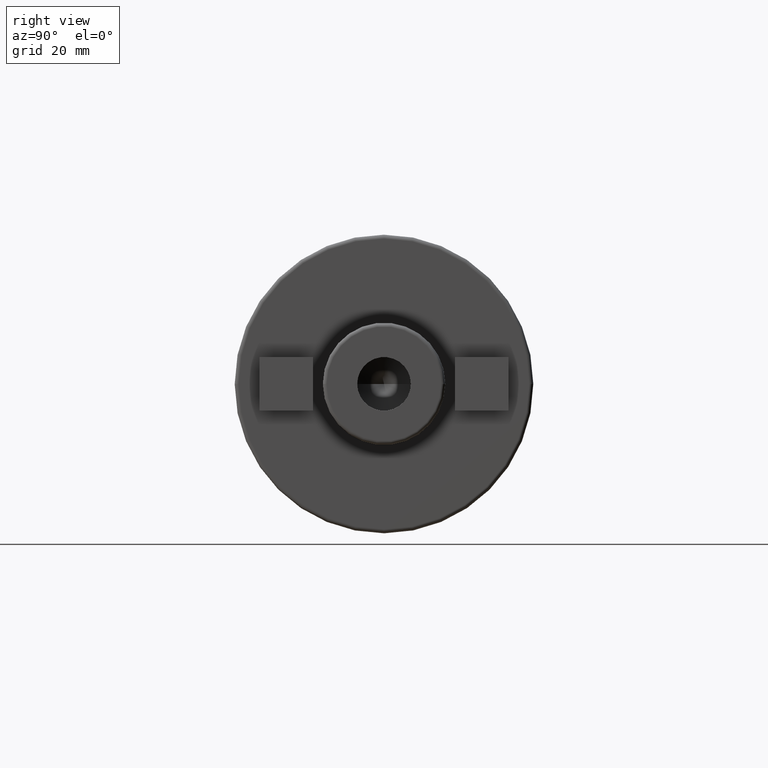
[diagram: clean part render]
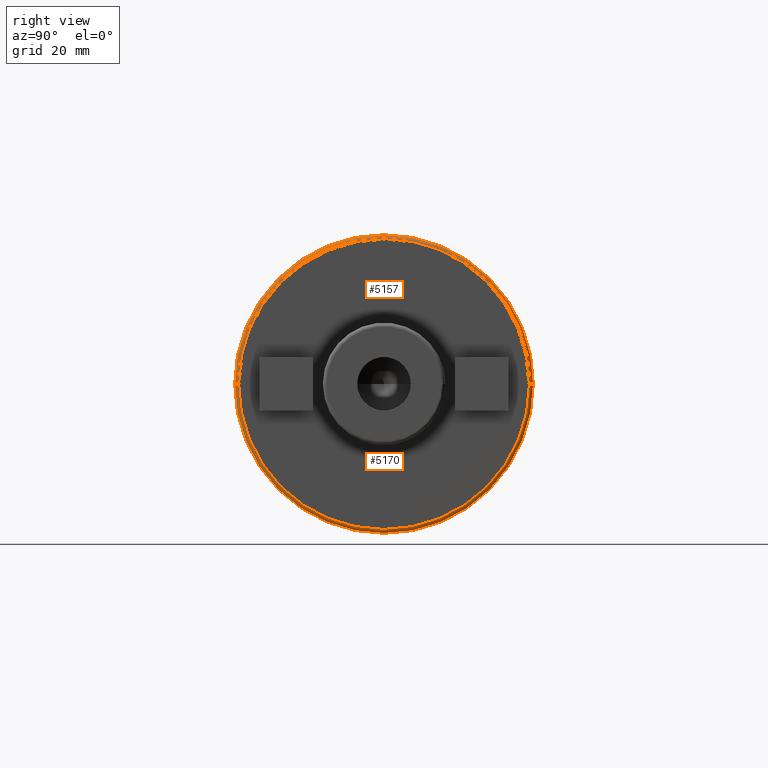
[diagram: same view with one multi-face feature highlighted, each face labeled with its STEP entity id]
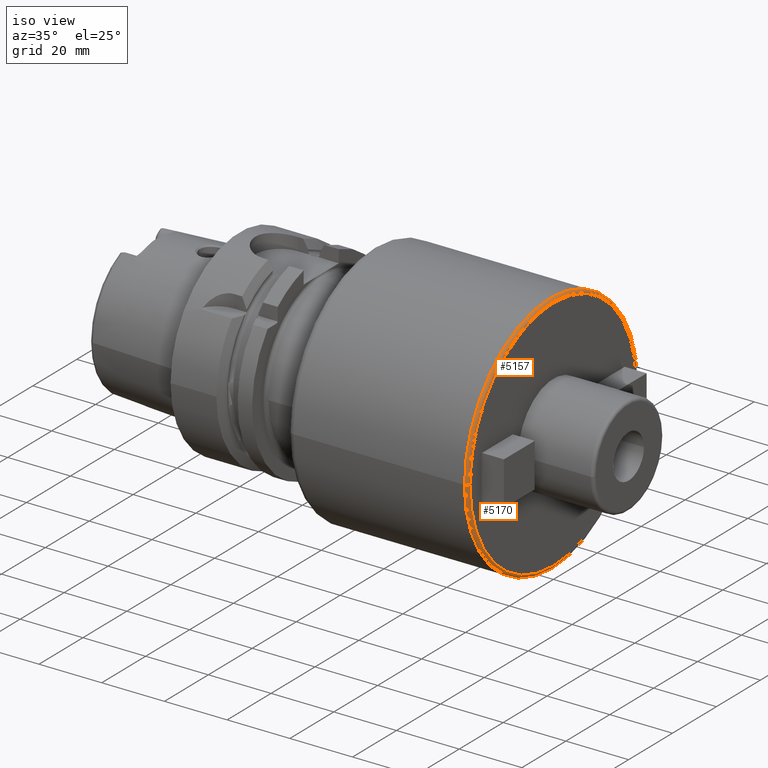
[diagram: same view with one multi-face feature highlighted, each face labeled with its STEP entity id]
A machine part, right view. The highlighted faces form ONE feature: a constant-radius fillet chain: 2 tangent blend faces with common blend radius 1 mm. The faces share edges in the B-rep.
A second angle (iso view) of the same feature is appended — it is thin or edge-on in the first view.
Their STEP definitions:
[1] entity #5170 (Torus):
#1535=CARTESIAN_POINT('',(9.9E1,0.E0,0.E0));
#1536=DIRECTION('',(-1.E0,0.E0,0.E0));
#1537=DIRECTION('',(0.E0,1.E0,0.E0));
#1538=AXIS2_PLACEMENT_3D('',#1535,#1536,#1537);
#1559=CARTESIAN_POINT('',(9.9E1,-3.8E1,-1.308314567794E-12));
#1560=DIRECTION('',(0.E0,-3.442927366815E-14,1.E0));
#1561=DIRECTION('',(0.E0,-1.E0,-3.442927366815E-14));
#1562=AXIS2_PLACEMENT_3D('',#1559,#1560,#1561);
#1564=CARTESIAN_POINT('',(9.9E1,3.8E1,1.320929476911E-12));
#1565=DIRECTION('',(0.E0,3.476125637336E-14,-1.E0));
#1566=DIRECTION('',(0.E0,1.E0,3.476125637336E-14));
#1567=AXIS2_PLACEMENT_3D('',#1564,#1565,#1566);
#1579=CARTESIAN_POINT('',(1.E2,0.E0,0.E0));
#1580=DIRECTION('',(-1.E0,0.E0,0.E0));
#1581=DIRECTION('',(0.E0,1.E0,0.E0));
#1582=AXIS2_PLACEMENT_3D('',#1579,#1580,#1581);
#3267=CARTESIAN_POINT('',(9.9E1,3.9E1,0.E0));
#3268=CARTESIAN_POINT('',(9.9E1,-3.9E1,0.E0));
#3269=VERTEX_POINT('',#3267);
#3270=VERTEX_POINT('',#3268);
#3271=CARTESIAN_POINT('',(1.E2,3.8E1,0.E0));
#3272=CARTESIAN_POINT('',(1.E2,-3.8E1,0.E0));
#3273=VERTEX_POINT('',#3271);
#3274=VERTEX_POINT('',#3272);
#5158=CARTESIAN_POINT('',(9.9E1,0.E0,0.E0));
#5159=DIRECTION('',(1.E0,0.E0,0.E0));
#5160=DIRECTION('',(0.E0,9.999982034675E-1,1.895537326407E-3));
#5161=AXIS2_PLACEMENT_3D('',#5158,#5159,#5160);
#5162=TOROIDAL_SURFACE('',#5161,3.8E1,1.E0);
#5163=ORIENTED_EDGE('',*,*,#5110,.T.);
#5164=ORIENTED_EDGE('',*,*,#5153,.T.);
#5166=ORIENTED_EDGE('',*,*,#5165,.F.);
#5167=ORIENTED_EDGE('',*,*,#5149,.F.);
#5168=EDGE_LOOP('',(#5163,#5164,#5166,#5167));
#5169=FACE_OUTER_BOUND('',#5168,.F.);
#5170=ADVANCED_FACE('',(#5169),#5162,.T.);
#1539=CIRCLE('',#1538,3.9E1);
#1563=CIRCLE('',#1562,1.E0);
#1568=CIRCLE('',#1567,1.E0);
#1583=CIRCLE('',#1582,3.8E1);
#5110=EDGE_CURVE('',#3269,#3270,#1539,.T.);
#5149=EDGE_CURVE('',#3269,#3273,#1568,.T.);
#5153=EDGE_CURVE('',#3270,#3274,#1563,.T.);
#5165=EDGE_CURVE('',#3273,#3274,#1583,.T.);
[2] entity #5157 (Torus):
#1549=CARTESIAN_POINT('',(9.9E1,0.E0,0.E0));
#1550=DIRECTION('',(-1.E0,0.E0,0.E0));
#1551=DIRECTION('',(0.E0,-1.E0,0.E0));
#1552=AXIS2_PLACEMENT_3D('',#1549,#1550,#1551);
#1559=CARTESIAN_POINT('',(9.9E1,-3.8E1,-1.308314567794E-12));
#1560=DIRECTION('',(0.E0,-3.442927366815E-14,1.E0));
#1561=DIRECTION('',(0.E0,-1.E0,-3.442927366815E-14));
#1562=AXIS2_PLACEMENT_3D('',#1559,#1560,#1561);
#1564=CARTESIAN_POINT('',(9.9E1,3.8E1,1.320929476911E-12));
#1565=DIRECTION('',(0.E0,3.476125637336E-14,-1.E0));
#1566=DIRECTION('',(0.E0,1.E0,3.476125637336E-14));
#1567=AXIS2_PLACEMENT_3D('',#1564,#1565,#1566);
#1584=CARTESIAN_POINT('',(1.E2,0.E0,0.E0));
#1585=DIRECTION('',(-1.E0,0.E0,0.E0));
#1586=DIRECTION('',(0.E0,-1.E0,0.E0));
#1587=AXIS2_PLACEMENT_3D('',#1584,#1585,#1586);
#3267=CARTESIAN_POINT('',(9.9E1,3.9E1,0.E0));
#3268=CARTESIAN_POINT('',(9.9E1,-3.9E1,0.E0));
#3269=VERTEX_POINT('',#3267);
#3270=VERTEX_POINT('',#3268);
#3271=CARTESIAN_POINT('',(1.E2,3.8E1,0.E0));
#3272=CARTESIAN_POINT('',(1.E2,-3.8E1,0.E0));
#3273=VERTEX_POINT('',#3271);
#3274=VERTEX_POINT('',#3272);
#5143=CARTESIAN_POINT('',(9.9E1,0.E0,0.E0));
#5144=DIRECTION('',(1.E0,0.E0,0.E0));
#5145=DIRECTION('',(0.E0,-9.999982034675E-1,-1.895537326406E-3));
#5146=AXIS2_PLACEMENT_3D('',#5143,#5144,#5145);
#5147=TOROIDAL_SURFACE('',#5146,3.8E1,1.E0);
#5148=ORIENTED_EDGE('',*,*,#5125,.T.);
#5150=ORIENTED_EDGE('',*,*,#5149,.T.);
#5152=ORIENTED_EDGE('',*,*,#5151,.F.);
#5154=ORIENTED_EDGE('',*,*,#5153,.F.);
#5155=EDGE_LOOP('',(#5148,#5150,#5152,#5154));
#5156=FACE_OUTER_BOUND('',#5155,.F.);
#5157=ADVANCED_FACE('',(#5156),#5147,.T.);
#1553=CIRCLE('',#1552,3.9E1);
#1563=CIRCLE('',#1562,1.E0);
#1568=CIRCLE('',#1567,1.E0);
#1588=CIRCLE('',#1587,3.8E1);
#5125=EDGE_CURVE('',#3270,#3269,#1553,.T.);
#5149=EDGE_CURVE('',#3269,#3273,#1568,.T.);
#5151=EDGE_CURVE('',#3274,#3273,#1588,.T.);
#5153=EDGE_CURVE('',#3270,#3274,#1563,.T.);